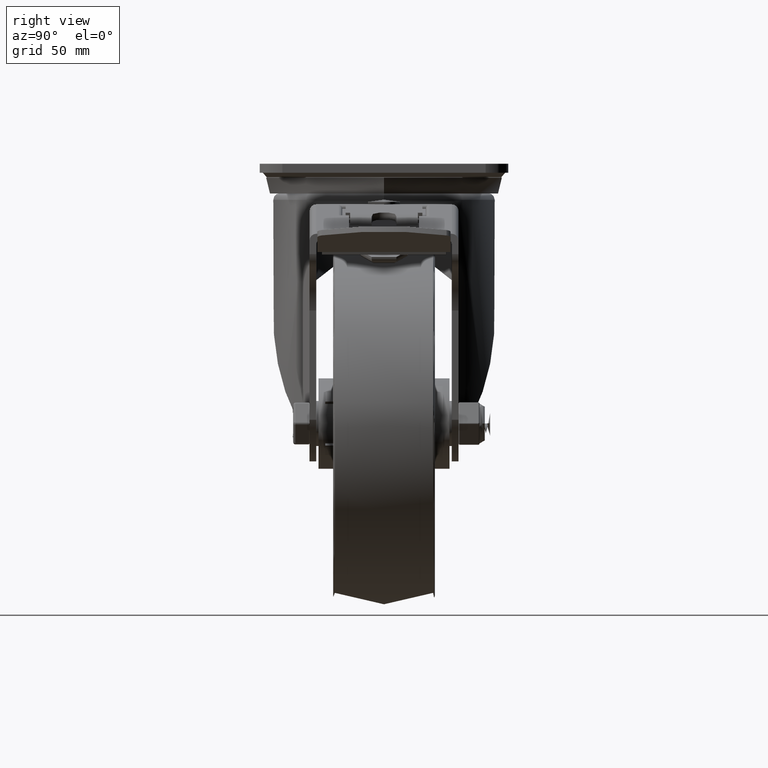
[diagram: clean part render]
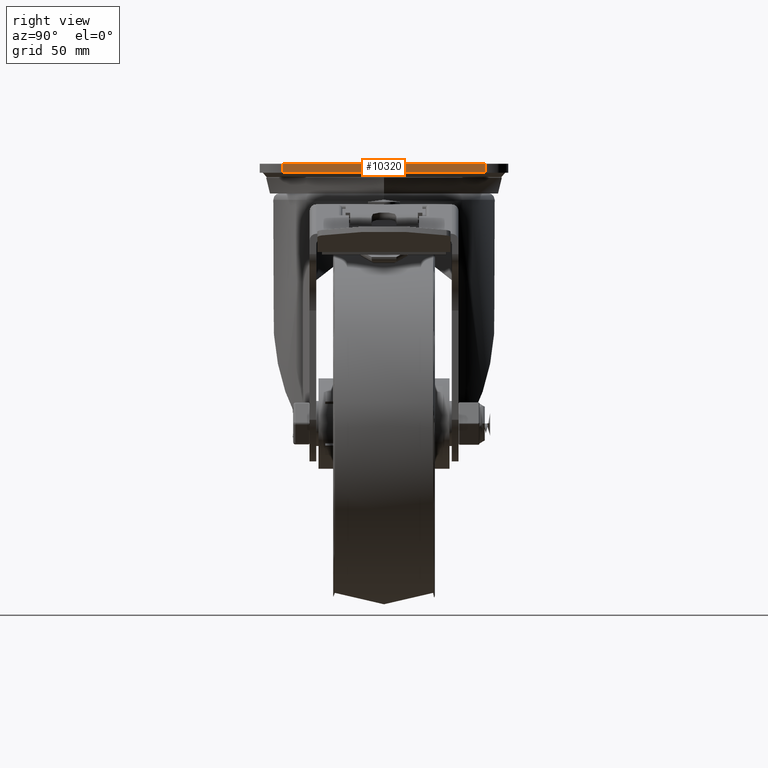
[diagram: same view with one face highlighted and labeled with its STEP entity id]
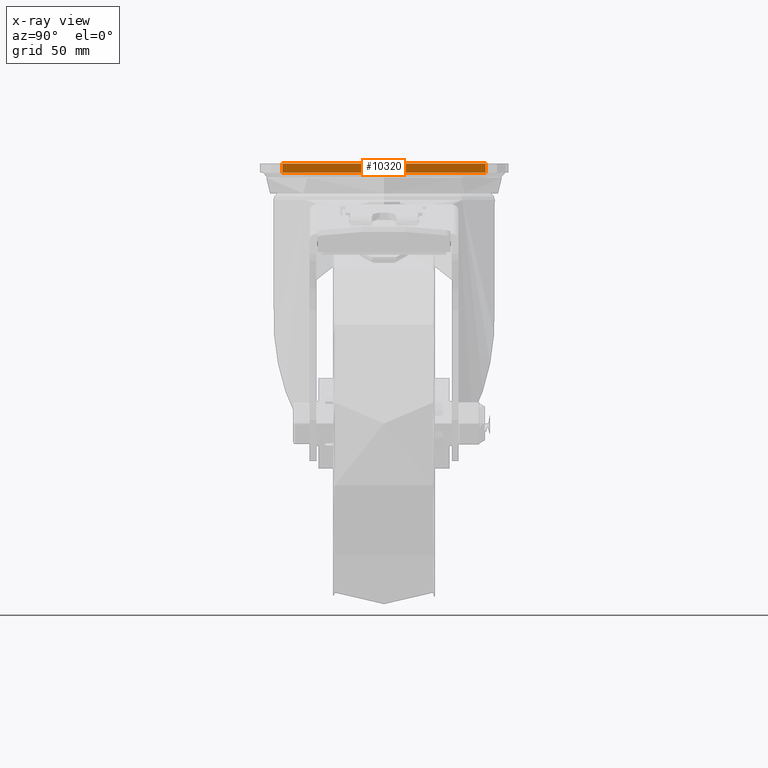
[diagram: x-ray of the same camera — body ghosted, the highlighted face saturated]
A machine part, right view. The second image highlights one B-rep face of the part: STEP entity #10320.
The next image is the same camera in x-ray: the body ghosted, the highlighted face saturated — about 0% of this face is hidden behind the body in this view.
In plain terms, the highlighted planar face has unit normal (1, 0, 0).
Its self-contained STEP definition (entity closure, byte-faithful):
#588=PLANE('',#11227);
#1192=FACE_OUTER_BOUND('',#1808,.T.);
#1808=EDGE_LOOP('',(#7353,#7354,#7355,#7356));
#2418=LINE('',#15318,#3249);
#2421=LINE('',#15330,#3252);
#2462=LINE('',#18129,#3293);
#2474=LINE('',#18144,#3305);
#3249=VECTOR('',#12270,1000.);
#3252=VECTOR('',#12281,1000.);
#3293=VECTOR('',#12554,1000.);
#3305=VECTOR('',#12572,1000.);
#4531=VERTEX_POINT('',#15315);
#4532=VERTEX_POINT('',#15317);
#4534=VERTEX_POINT('',#15323);
#4537=VERTEX_POINT('',#15328);
#5517=EDGE_CURVE('',#4531,#4532,#2418,.T.);
#5523=EDGE_CURVE('',#4537,#4534,#2421,.T.);
#5662=EDGE_CURVE('',#4531,#4534,#2462,.T.);
#5674=EDGE_CURVE('',#4537,#4532,#2474,.T.);
#7353=ORIENTED_EDGE('',*,*,#5523,.F.);
#7354=ORIENTED_EDGE('',*,*,#5674,.T.);
#7355=ORIENTED_EDGE('',*,*,#5517,.F.);
#7356=ORIENTED_EDGE('',*,*,#5662,.T.);
#10320=ADVANCED_FACE('',(#1192),#588,.T.);
#11227=AXIS2_PLACEMENT_3D('',#18143,#12570,#12571);
#12270=DIRECTION('',(0.,0.,-1.));
#12281=DIRECTION('',(0.,0.,1.));
#12554=DIRECTION('',(0.,-1.,0.));
#12570=DIRECTION('center_axis',(1.,0.,0.));
#12571=DIRECTION('ref_axis',(0.,-1.,0.));
#12572=DIRECTION('',(0.,1.,0.));
#15315=CARTESIAN_POINT('',(67.5,45.,0.));
#15317=CARTESIAN_POINT('',(67.5,45.,-4.));
#15318=CARTESIAN_POINT('',(67.5,45.,0.));
#15323=CARTESIAN_POINT('',(67.5,-45.,0.));
#15328=CARTESIAN_POINT('',(67.5,-45.,-4.));
#15330=CARTESIAN_POINT('',(67.5,-45.,0.));
#18129=CARTESIAN_POINT('',(67.5,55.,0.));
#18143=CARTESIAN_POINT('Origin',(67.5,0.,0.));
#18144=CARTESIAN_POINT('',(67.5,55.,-4.));